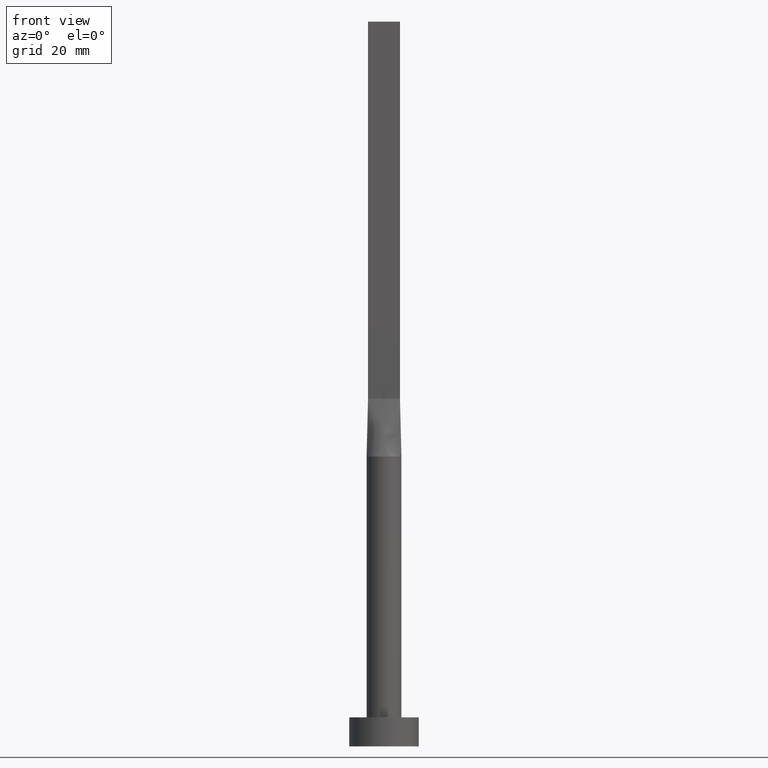
[diagram: clean part render]
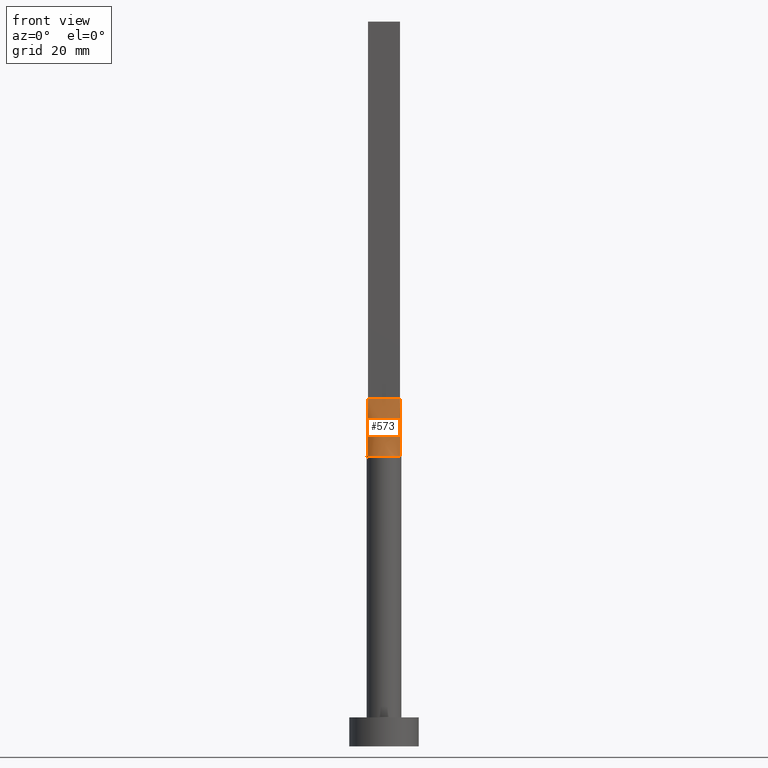
[diagram: same view with one face highlighted and labeled with its STEP entity id]
A machine part, front view. The second image highlights one B-rep face of the part: STEP entity #573.
In plain terms, the highlighted face is a freeform B-spline surface patch.
Its self-contained STEP definition (entity closure, byte-faithful):
#2 = ORIENTED_EDGE ( 'NONE', *, *, #554, .T. ) ;
#5 = CARTESIAN_POINT ( 'NONE',  ( -2.894291463713197121, -0.7893522173763257710, 49.99999999999999289 ) ) ;
#7 = EDGE_LOOP ( 'NONE', ( #2, #357, #11, #54 ) ) ;
#11 = ORIENTED_EDGE ( 'NONE', *, *, #30, .F. ) ;
#12 = CARTESIAN_POINT ( 'NONE',  ( 2.894514141151844910, -0.7894138151126537384, 49.99999999999999289 ) ) ;
#14 = CARTESIAN_POINT ( 'NONE',  ( 0.4583333333333297066, -0.7499999999999995559, 60.00000000000000000 ) ) ;
#19 = DIRECTION ( 'NONE',  ( 1.000000000000000000, -5.913830031739115543E-17, 0.000000000000000000 ) ) ;
#20 = CARTESIAN_POINT ( 'NONE',  ( -0.4583333333333369786, -0.7499999999999995559, 60.00000000000000000 ) ) ;
#26 = VECTOR ( 'NONE', #323, 1000.000000000000000 ) ;
#30 = EDGE_CURVE ( 'NONE', #245, #469, #148, .T. ) ;
#54 = ORIENTED_EDGE ( 'NONE', *, *, #158, .T. ) ;
#57 = CARTESIAN_POINT ( 'NONE',  ( -2.442412046818594806, -1.765588549521968975, 49.99999999999999289 ) ) ;
#61 = DIRECTION ( 'NONE',  ( 0.000000000000000000, 0.000000000000000000, 1.000000000000000000 ) ) ;
#62 = VERTEX_POINT ( 'NONE', #12 ) ;
#63 = CARTESIAN_POINT ( 'NONE',  ( -2.291666666666667851, -0.7499999999999995559, 60.00000000000000000 ) ) ;
#102 = CARTESIAN_POINT ( 'NONE',  ( 2.442412046818594362, -1.765588549521970751, 50.00000000000000000 ) ) ;
#104 = CARTESIAN_POINT ( 'NONE',  ( -0.9166666666666699603, -0.7499999999999995559, 60.00000000000000000 ) ) ;
#105 = CARTESIAN_POINT ( 'NONE',  ( -2.750000000000000000, -0.7499999999999994449, 60.00000000000000000 ) ) ;
#107 = CARTESIAN_POINT ( 'NONE',  ( -2.248179627679386616, -2.014142483996539390, 50.00000000000000711 ) ) ;
#146 = CARTESIAN_POINT ( 'NONE',  ( 2.248179627679384840, -2.014142483996542055, 50.00000000000001421 ) ) ;
#148 = LINE ( 'NONE', #105, #564 ) ;
#149 = CARTESIAN_POINT ( 'NONE',  ( -2.520833333333333925, -0.7499999999999994449, 60.00000000000000000 ) ) ;
#153 = DIRECTION ( 'NONE',  ( 1.000000000000000000, 0.000000000000000000, 0.000000000000000000 ) ) ;
#157 = CARTESIAN_POINT ( 'NONE',  ( 2.291666666666665186, -0.7499999999999997780, 60.00000000000000000 ) ) ;
#158 = EDGE_CURVE ( 'NONE', #245, #458, #471, .T. ) ;
#161 = CARTESIAN_POINT ( 'NONE',  ( 2.830829925251657997, -1.022044525068636078, 50.00000000000000711 ) ) ;
#171 = LINE ( 'NONE', #390, #421 ) ;
#195 = CARTESIAN_POINT ( 'NONE',  ( -1.604166666666669183, -0.7499999999999995559, 60.00000000000000000 ) ) ;
#196 = CARTESIAN_POINT ( 'NONE',  ( -0.3818979204996094667, -3.000000000000000000, 50.00000000000000000 ) ) ;
#199 = CARTESIAN_POINT ( 'NONE',  ( 2.520833333333332593, -0.7499999999999997780, 60.00000000000000000 ) ) ;
#207 = CIRCLE ( 'NONE', #308, 3.000000000000000444 ) ;
#215 = DIRECTION ( 'NONE',  ( -0.01442753284129399960, 0.003934781683989411159, 0.9998881756422629552 ) ) ;
#235 = CARTESIAN_POINT ( 'NONE',  ( 2.894291463713196677, -0.7893522173763275473, 49.99999999999999289 ) ) ;
#238 = CARTESIAN_POINT ( 'NONE',  ( -2.733316749964668446, -1.269511353635829787, 50.00000000000000711 ) ) ;
#239 = CARTESIAN_POINT ( 'NONE',  ( -1.833333333333335480, -0.7499999999999995559, 60.00000000000000000 ) ) ;
#242 = CARTESIAN_POINT ( 'NONE',  ( -2.750000000000000000, -0.7499999999999994449, 60.00000000000000000 ) ) ;
#245 = VERTEX_POINT ( 'NONE', #252 ) ;
#252 = CARTESIAN_POINT ( 'NONE',  ( -2.750000000000000000, -0.7499999999999994449, 60.00000000000000000 ) ) ;
#277 = CARTESIAN_POINT ( 'NONE',  ( -0.7628506052746809596, -2.924692134573154245, 49.99999999999998579 ) ) ;
#279 = CARTESIAN_POINT ( 'NONE',  ( 1.604166666666664076, -0.7499999999999997780, 60.00000000000000000 ) ) ;
#286 = CARTESIAN_POINT ( 'NONE',  ( 0.000000000000000000, 0.000000000000000000, 49.99999999999999289 ) ) ;
#289 = CARTESIAN_POINT ( 'NONE',  ( 0.9166666666666632990, -0.7499999999999995559, 60.00000000000000000 ) ) ;
#308 = AXIS2_PLACEMENT_3D ( 'NONE', #286, #61, #153 ) ;
#309 = CARTESIAN_POINT ( 'NONE',  ( 2.750000000000000000, -0.7499999999999997780, 60.00000000000000000 ) ) ;
#316 = CARTESIAN_POINT ( 'NONE',  ( -2.830829925251658885, -1.022044525068633858, 50.00000000000000711 ) ) ;
#322 = CARTESIAN_POINT ( 'NONE',  ( 2.733316749964666670, -1.269511353635832229, 50.00000000000000711 ) ) ;
#323 = DIRECTION ( 'NONE',  ( -0.01442753284129404297, -0.003934781683989269779, -0.9998881756422629552 ) ) ;
#352 = EDGE_CURVE ( 'NONE', #62, #469, #171, .T. ) ;
#357 = ORIENTED_EDGE ( 'NONE', *, *, #352, .T. ) ;
#359 = CARTESIAN_POINT ( 'NONE',  ( -2.894489875237701959, -0.7894071376467488577, 49.99999999999999289 ) ) ;
#362 = CARTESIAN_POINT ( 'NONE',  ( -1.751288851749022379, -2.458468820606022565, 49.99999999999999289 ) ) ;
#365 = FACE_OUTER_BOUND ( 'NONE', #7, .T. ) ;
#370 = CARTESIAN_POINT ( 'NONE',  ( 0.2291666666666629937, -0.7499999999999995559, 60.00000000000000000 ) ) ;
#375 = CARTESIAN_POINT ( 'NONE',  ( 1.447928580458857972, -2.653161878569119558, 50.00000000000000711 ) ) ;
#390 = CARTESIAN_POINT ( 'NONE',  ( 2.822145731856598339, -0.7696761086881637182, 54.99999999999999289 ) ) ;
#420 = CARTESIAN_POINT ( 'NONE',  ( -1.447928580458859749, -2.653161878569118226, 50.00000000000000000 ) ) ;
#421 = VECTOR ( 'NONE', #215, 1000.000000000000000 ) ;
#427 = CARTESIAN_POINT ( 'NONE',  ( -2.822145731856598783, -0.7696761086881626079, 54.99999999999999289 ) ) ;
#458 = VERTEX_POINT ( 'NONE', #359 ) ;
#465 = CARTESIAN_POINT ( 'NONE',  ( -1.145833333333336368, -0.7499999999999995559, 60.00000000000000000 ) ) ;
#469 = VERTEX_POINT ( 'NONE', #309 ) ;
#471 = LINE ( 'NONE', #427, #26 ) ;
#472 = CARTESIAN_POINT ( 'NONE',  ( 1.751288851749020603, -2.458468820606023897, 50.00000000000000711 ) ) ;
#504 = CARTESIAN_POINT ( 'NONE',  ( 0.7628506052746785171, -2.924692134573155577, 50.00000000000000000 ) ) ;
#507 = CARTESIAN_POINT ( 'NONE',  ( -0.2291666666666703489, -0.7499999999999995559, 60.00000000000000000 ) ) ;
#543 = CARTESIAN_POINT ( 'NONE',  ( 1.145833333333330373, -0.7499999999999996669, 60.00000000000000000 ) ) ;
#549 = CARTESIAN_POINT ( 'NONE',  ( 2.750000000000000000, -0.7499999999999997780, 60.00000000000000000 ) ) ;
#550 = B_SPLINE_SURFACE_WITH_KNOTS ( 'NONE', 3, 1, ( 
 ( #5, #242 ),
 ( #316, #149 ),
 ( #238, #63 ),
 ( #57, #239 ),
 ( #107, #195 ),
 ( #362, #465 ),
 ( #420, #104 ),
 ( #277, #20 ),
 ( #196, #507 ),
 ( #551, #370 ),
 ( #504, #14 ),
 ( #375, #289 ),
 ( #472, #543 ),
 ( #146, #279 ),
 ( #102, #553 ),
 ( #322, #157 ),
 ( #161, #199 ),
 ( #235, #549 ) ),
 .UNSPECIFIED., .F., .F., .F.,
 ( 4, 2, 2, 2, 2, 2, 2, 2, 4 ),
 ( 2, 2 ),
 ( 0.000000000000000000, 0.1250000000000000000, 0.2500000000000000000, 0.3750000000000000000, 0.5000000000000000000, 0.6250000000000000000, 0.7500000000000000000, 0.8750000000000000000, 1.000000000000000000 ),
 ( 0.000000000000000000, 1.000000000000000000 ),
 .UNSPECIFIED. ) ;
#551 = CARTESIAN_POINT ( 'NONE',  ( 0.3818979204996068022, -3.000000000000001332, 49.99999999999998579 ) ) ;
#553 = CARTESIAN_POINT ( 'NONE',  ( 1.833333333333331261, -0.7499999999999997780, 60.00000000000000000 ) ) ;
#554 = EDGE_CURVE ( 'NONE', #458, #62, #207, .T. ) ;
#564 = VECTOR ( 'NONE', #19, 1000.000000000000000 ) ;
#573 = ADVANCED_FACE ( 'NONE', ( #365 ), #550, .T. ) ;